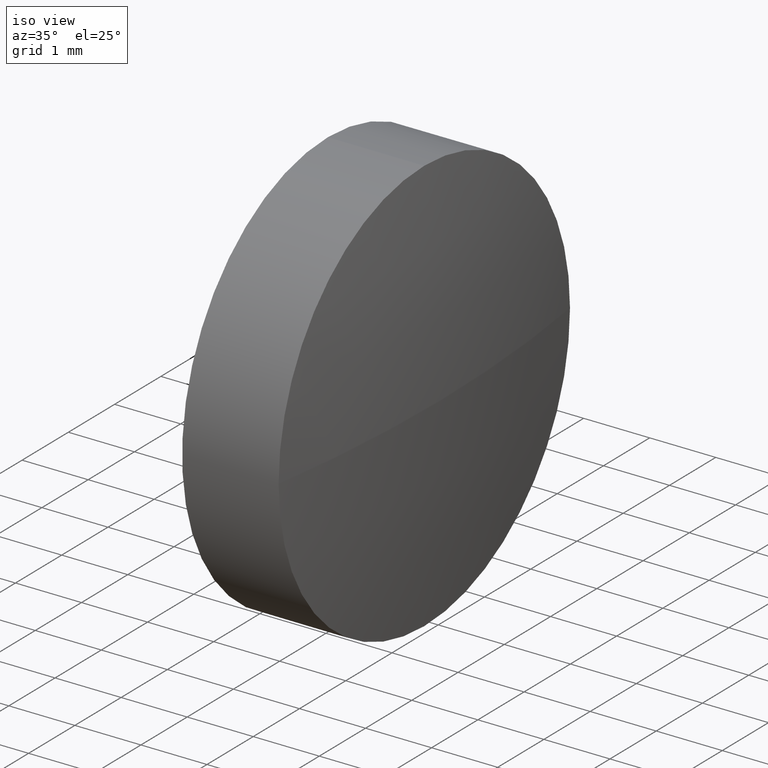
[diagram: clean part render]
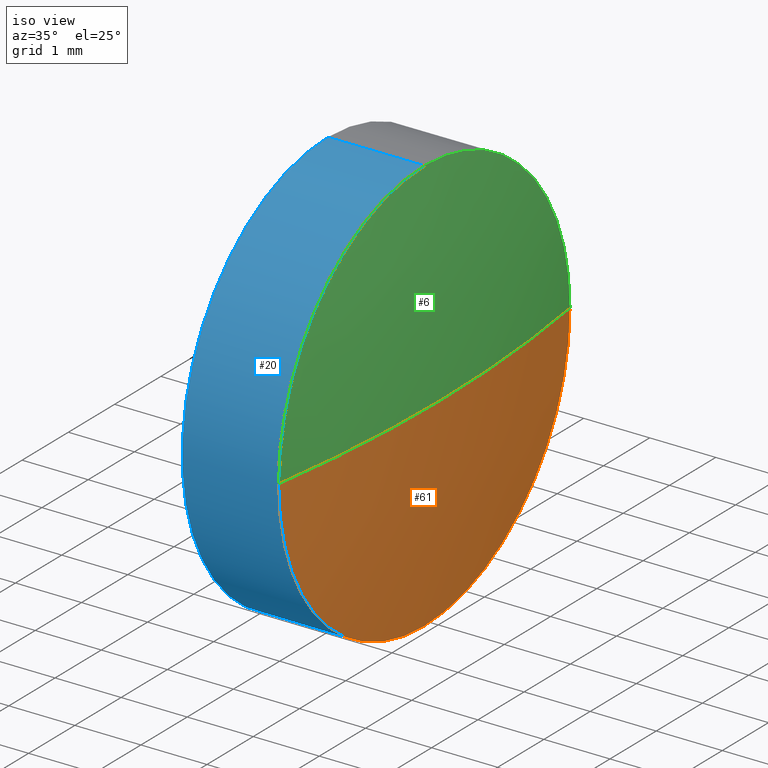
[diagram: same view with three faces highlighted in distinct colors, each labeled with its STEP entity id]
A machine part, iso view with three faces highlighted in distinct colors.
Their STEP definitions:

[orange] entity #61 — the highlighted spherical surface has radius 20.7919 mm.
#21 = CIRCLE ( 'NONE', #158, 3.149999999999986100 ) ;
#23 = CIRCLE ( 'NONE', #88, 3.149999999999986100 ) ;
#24 = DIRECTION ( 'NONE',  ( -1.000000000000000000, 0.0000000000000000000, 0.0000000000000000000 ) ) ;
#26 = EDGE_CURVE ( 'NONE', #33, #145, #23, .T. ) ;
#27 = VERTEX_POINT ( 'NONE', #73 ) ;
#28 = DIRECTION ( 'NONE',  ( 0.0000000000000000000, 0.0000000000000000000, -1.000000000000000000 ) ) ;
#29 = CARTESIAN_POINT ( 'NONE',  ( 625.0474028010091800, 90.48142839999432900, 0.0000000000000000000 ) ) ;
#33 = VERTEX_POINT ( 'NONE', #58 ) ;
#38 = ORIENTED_EDGE ( 'NONE', *, *, #26, .F. ) ;
#39 = AXIS2_PLACEMENT_3D ( 'NONE', #139, #60, #74 ) ;
#42 = DIRECTION ( 'NONE',  ( 0.0000000000000000000, -1.224646799147353200E-016, 1.000000000000000000 ) ) ;
#49 = DIRECTION ( 'NONE',  ( 0.0000000000000000000, 0.0000000000000000000, 1.000000000000000000 ) ) ;
#53 = EDGE_CURVE ( 'NONE', #27, #178, #105, .T. ) ;
#58 = CARTESIAN_POINT ( 'NONE',  ( 625.0474028010091800, 93.63142839999422100, -3.149999999999986100 ) ) ;
#60 = DIRECTION ( 'NONE',  ( 0.0000000000000000000, 0.0000000000000000000, 1.000000000000000000 ) ) ;
#61 = ADVANCED_FACE ( 'NONE', ( #181 ), #176, .T. ) ;
#65 = EDGE_LOOP ( 'NONE', ( #149, #118, #38, #124 ) ) ;
#73 = CARTESIAN_POINT ( 'NONE',  ( 625.2874028010093100, 93.63142839999440500, 0.0000000000000000000 ) ) ;
#74 = DIRECTION ( 'NONE',  ( 0.0000000000000000000, -1.000000000000000000, 0.0000000000000000000 ) ) ;
#78 = CARTESIAN_POINT ( 'NONE',  ( 625.0474028010091800, 96.78142839999429700, 3.857637417314025600E-016 ) ) ;
#79 = CARTESIAN_POINT ( 'NONE',  ( 625.0474028010091800, 93.63142839999422100, 0.0000000000000000000 ) ) ;
#87 = EDGE_CURVE ( 'NONE', #27, #145, #95, .T. ) ;
#88 = AXIS2_PLACEMENT_3D ( 'NONE', #180, #165, #179 ) ;
#89 = CARTESIAN_POINT ( 'NONE',  ( 604.4955278010093000, 93.63142839999440500, 0.0000000000000000000 ) ) ;
#93 = EDGE_CURVE ( 'NONE', #178, #33, #21, .T. ) ;
#95 = CIRCLE ( 'NONE', #136, 20.79187499999990500 ) ;
#101 = AXIS2_PLACEMENT_3D ( 'NONE', #169, #42, #156 ) ;
#105 = CIRCLE ( 'NONE', #101, 20.79187499999989100 ) ;
#118 = ORIENTED_EDGE ( 'NONE', *, *, #87, .T. ) ;
#124 = ORIENTED_EDGE ( 'NONE', *, *, #93, .F. ) ;
#136 = AXIS2_PLACEMENT_3D ( 'NONE', #89, #28, #24 ) ;
#139 = CARTESIAN_POINT ( 'NONE',  ( 604.4955278010093000, 93.63142839999440500, 0.0000000000000000000 ) ) ;
#145 = VERTEX_POINT ( 'NONE', #29 ) ;
#149 = ORIENTED_EDGE ( 'NONE', *, *, #53, .F. ) ;
#156 = DIRECTION ( 'NONE',  ( 0.0000000000000000000, -1.000000000000000000, -1.224646799147352700E-016 ) ) ;
#158 = AXIS2_PLACEMENT_3D ( 'NONE', #79, #160, #49 ) ;
#160 = DIRECTION ( 'NONE',  ( -1.000000000000000000, -0.0000000000000000000, -0.0000000000000000000 ) ) ;
#165 = DIRECTION ( 'NONE',  ( -1.000000000000000000, -0.0000000000000000000, -0.0000000000000000000 ) ) ;
#169 = CARTESIAN_POINT ( 'NONE',  ( 604.4955278010093000, 93.63142839999440500, 0.0000000000000000000 ) ) ;
#176 = SPHERICAL_SURFACE ( 'NONE', #39, 20.79187499999988400 ) ;
#178 = VERTEX_POINT ( 'NONE', #78 ) ;
#179 = DIRECTION ( 'NONE',  ( 0.0000000000000000000, 0.0000000000000000000, 1.000000000000000000 ) ) ;
#180 = CARTESIAN_POINT ( 'NONE',  ( 625.0474028010091800, 93.63142839999422100, 0.0000000000000000000 ) ) ;
#181 = FACE_OUTER_BOUND ( 'NONE', #65, .T. ) ;

[blue] entity #20 — the highlighted cylindrical surface (partial cylindrical patch) has radius 3.15 mm, axis along (-1, -0, -0).
#2 = DIRECTION ( 'NONE',  ( 0.0000000000000000000, 0.0000000000000000000, 1.000000000000000000 ) ) ;
#3 = DIRECTION ( 'NONE',  ( -1.000000000000000000, -0.0000000000000000000, -0.0000000000000000000 ) ) ;
#4 = FACE_OUTER_BOUND ( 'NONE', #77, .T. ) ;
#7 = AXIS2_PLACEMENT_3D ( 'NONE', #63, #144, #51 ) ;
#8 = EDGE_CURVE ( 'NONE', #47, #143, #75, .T. ) ;
#9 = VERTEX_POINT ( 'NONE', #120 ) ;
#16 = ORIENTED_EDGE ( 'NONE', *, *, #26, .T. ) ;
#18 = CARTESIAN_POINT ( 'NONE',  ( 623.5874028010093800, 93.63142839999422100, 0.0000000000000000000 ) ) ;
#20 = ADVANCED_FACE ( 'NONE', ( #4 ), #171, .T. ) ;
#23 = CIRCLE ( 'NONE', #88, 3.149999999999986100 ) ;
#25 = EDGE_CURVE ( 'NONE', #9, #143, #96, .T. ) ;
#26 = EDGE_CURVE ( 'NONE', #33, #145, #23, .T. ) ;
#29 = CARTESIAN_POINT ( 'NONE',  ( 625.0474028010091800, 90.48142839999432900, 0.0000000000000000000 ) ) ;
#33 = VERTEX_POINT ( 'NONE', #58 ) ;
#46 = LINE ( 'NONE', #48, #67 ) ;
#47 = VERTEX_POINT ( 'NONE', #154 ) ;
#48 = CARTESIAN_POINT ( 'NONE',  ( 622.7257746314247700, 93.63142839999422100, -3.149999999999986100 ) ) ;
#50 = CARTESIAN_POINT ( 'NONE',  ( 623.5874028010093800, 93.63142839999422100, 3.149999999999986100 ) ) ;
#51 = DIRECTION ( 'NONE',  ( 0.0000000000000000000, 0.0000000000000000000, 1.000000000000000000 ) ) ;
#56 = DIRECTION ( 'NONE',  ( -1.000000000000000000, -0.0000000000000000000, -0.0000000000000000000 ) ) ;
#58 = CARTESIAN_POINT ( 'NONE',  ( 625.0474028010091800, 93.63142839999422100, -3.149999999999986100 ) ) ;
#59 = VECTOR ( 'NONE', #3, 1000.000000000000000 ) ;
#63 = CARTESIAN_POINT ( 'NONE',  ( 625.0474028010091800, 93.63142839999422100, 0.0000000000000000000 ) ) ;
#67 = VECTOR ( 'NONE', #128, 1000.000000000000000 ) ;
#69 = ORIENTED_EDGE ( 'NONE', *, *, #114, .F. ) ;
#70 = DIRECTION ( 'NONE',  ( -1.000000000000000000, -0.0000000000000000000, -0.0000000000000000000 ) ) ;
#71 = CARTESIAN_POINT ( 'NONE',  ( 622.7257746314247700, 93.63142839999422100, 0.0000000000000000000 ) ) ;
#75 = CIRCLE ( 'NONE', #99, 3.149999999999986100 ) ;
#77 = EDGE_LOOP ( 'NONE', ( #69, #16, #151, #113, #98 ) ) ;
#88 = AXIS2_PLACEMENT_3D ( 'NONE', #180, #165, #179 ) ;
#96 = LINE ( 'NONE', #121, #59 ) ;
#98 = ORIENTED_EDGE ( 'NONE', *, *, #8, .F. ) ;
#99 = AXIS2_PLACEMENT_3D ( 'NONE', #18, #56, #2 ) ;
#113 = ORIENTED_EDGE ( 'NONE', *, *, #25, .T. ) ;
#114 = EDGE_CURVE ( 'NONE', #33, #47, #46, .T. ) ;
#120 = CARTESIAN_POINT ( 'NONE',  ( 625.0474028010091800, 93.63142839999422100, 3.149999999999986100 ) ) ;
#121 = CARTESIAN_POINT ( 'NONE',  ( 622.7257746314247700, 93.63142839999422100, 3.149999999999986100 ) ) ;
#122 = EDGE_CURVE ( 'NONE', #145, #9, #123, .T. ) ;
#123 = CIRCLE ( 'NONE', #7, 3.149999999999986100 ) ;
#128 = DIRECTION ( 'NONE',  ( -1.000000000000000000, -0.0000000000000000000, -0.0000000000000000000 ) ) ;
#143 = VERTEX_POINT ( 'NONE', #50 ) ;
#144 = DIRECTION ( 'NONE',  ( -1.000000000000000000, -0.0000000000000000000, -0.0000000000000000000 ) ) ;
#145 = VERTEX_POINT ( 'NONE', #29 ) ;
#146 = AXIS2_PLACEMENT_3D ( 'NONE', #71, #70, #177 ) ;
#151 = ORIENTED_EDGE ( 'NONE', *, *, #122, .T. ) ;
#154 = CARTESIAN_POINT ( 'NONE',  ( 623.5874028010093800, 93.63142839999422100, -3.149999999999986100 ) ) ;
#165 = DIRECTION ( 'NONE',  ( -1.000000000000000000, -0.0000000000000000000, -0.0000000000000000000 ) ) ;
#171 = CYLINDRICAL_SURFACE ( 'NONE', #146, 3.149999999999986100 ) ;
#177 = DIRECTION ( 'NONE',  ( 0.0000000000000000000, 0.0000000000000000000, 1.000000000000000000 ) ) ;
#179 = DIRECTION ( 'NONE',  ( 0.0000000000000000000, 0.0000000000000000000, 1.000000000000000000 ) ) ;
#180 = CARTESIAN_POINT ( 'NONE',  ( 625.0474028010091800, 93.63142839999422100, 0.0000000000000000000 ) ) ;

[green] entity #6 — the highlighted spherical surface has radius 20.7919 mm.
#5 = ORIENTED_EDGE ( 'NONE', *, *, #53, .T. ) ;
#6 = ADVANCED_FACE ( 'NONE', ( #126 ), #155, .T. ) ;
#7 = AXIS2_PLACEMENT_3D ( 'NONE', #63, #144, #51 ) ;
#9 = VERTEX_POINT ( 'NONE', #120 ) ;
#17 = EDGE_CURVE ( 'NONE', #9, #178, #30, .T. ) ;
#24 = DIRECTION ( 'NONE',  ( -1.000000000000000000, 0.0000000000000000000, 0.0000000000000000000 ) ) ;
#27 = VERTEX_POINT ( 'NONE', #73 ) ;
#28 = DIRECTION ( 'NONE',  ( 0.0000000000000000000, 0.0000000000000000000, -1.000000000000000000 ) ) ;
#29 = CARTESIAN_POINT ( 'NONE',  ( 625.0474028010091800, 90.48142839999432900, 0.0000000000000000000 ) ) ;
#30 = CIRCLE ( 'NONE', #109, 3.149999999999986100 ) ;
#40 = CARTESIAN_POINT ( 'NONE',  ( 604.4955278010093000, 93.63142839999440500, 0.0000000000000000000 ) ) ;
#42 = DIRECTION ( 'NONE',  ( 0.0000000000000000000, -1.224646799147353200E-016, 1.000000000000000000 ) ) ;
#51 = DIRECTION ( 'NONE',  ( 0.0000000000000000000, 0.0000000000000000000, 1.000000000000000000 ) ) ;
#53 = EDGE_CURVE ( 'NONE', #27, #178, #105, .T. ) ;
#63 = CARTESIAN_POINT ( 'NONE',  ( 625.0474028010091800, 93.63142839999422100, 0.0000000000000000000 ) ) ;
#68 = ORIENTED_EDGE ( 'NONE', *, *, #87, .F. ) ;
#72 = EDGE_LOOP ( 'NONE', ( #68, #5, #141, #137 ) ) ;
#73 = CARTESIAN_POINT ( 'NONE',  ( 625.2874028010093100, 93.63142839999440500, 0.0000000000000000000 ) ) ;
#78 = CARTESIAN_POINT ( 'NONE',  ( 625.0474028010091800, 96.78142839999429700, 3.857637417314025600E-016 ) ) ;
#87 = EDGE_CURVE ( 'NONE', #27, #145, #95, .T. ) ;
#89 = CARTESIAN_POINT ( 'NONE',  ( 604.4955278010093000, 93.63142839999440500, 0.0000000000000000000 ) ) ;
#95 = CIRCLE ( 'NONE', #136, 20.79187499999990500 ) ;
#101 = AXIS2_PLACEMENT_3D ( 'NONE', #169, #42, #156 ) ;
#105 = CIRCLE ( 'NONE', #101, 20.79187499999989100 ) ;
#109 = AXIS2_PLACEMENT_3D ( 'NONE', #166, #135, #163 ) ;
#120 = CARTESIAN_POINT ( 'NONE',  ( 625.0474028010091800, 93.63142839999422100, 3.149999999999986100 ) ) ;
#122 = EDGE_CURVE ( 'NONE', #145, #9, #123, .T. ) ;
#123 = CIRCLE ( 'NONE', #7, 3.149999999999986100 ) ;
#126 = FACE_OUTER_BOUND ( 'NONE', #72, .T. ) ;
#131 = AXIS2_PLACEMENT_3D ( 'NONE', #40, #152, #168 ) ;
#135 = DIRECTION ( 'NONE',  ( -1.000000000000000000, -0.0000000000000000000, -0.0000000000000000000 ) ) ;
#136 = AXIS2_PLACEMENT_3D ( 'NONE', #89, #28, #24 ) ;
#137 = ORIENTED_EDGE ( 'NONE', *, *, #122, .F. ) ;
#141 = ORIENTED_EDGE ( 'NONE', *, *, #17, .F. ) ;
#144 = DIRECTION ( 'NONE',  ( -1.000000000000000000, -0.0000000000000000000, -0.0000000000000000000 ) ) ;
#145 = VERTEX_POINT ( 'NONE', #29 ) ;
#152 = DIRECTION ( 'NONE',  ( 0.0000000000000000000, 0.0000000000000000000, 1.000000000000000000 ) ) ;
#155 = SPHERICAL_SURFACE ( 'NONE', #131, 20.79187499999988400 ) ;
#156 = DIRECTION ( 'NONE',  ( 0.0000000000000000000, -1.000000000000000000, -1.224646799147352700E-016 ) ) ;
#163 = DIRECTION ( 'NONE',  ( 0.0000000000000000000, 0.0000000000000000000, 1.000000000000000000 ) ) ;
#166 = CARTESIAN_POINT ( 'NONE',  ( 625.0474028010091800, 93.63142839999422100, 0.0000000000000000000 ) ) ;
#168 = DIRECTION ( 'NONE',  ( 0.0000000000000000000, -1.000000000000000000, 0.0000000000000000000 ) ) ;
#169 = CARTESIAN_POINT ( 'NONE',  ( 604.4955278010093000, 93.63142839999440500, 0.0000000000000000000 ) ) ;
#178 = VERTEX_POINT ( 'NONE', #78 ) ;